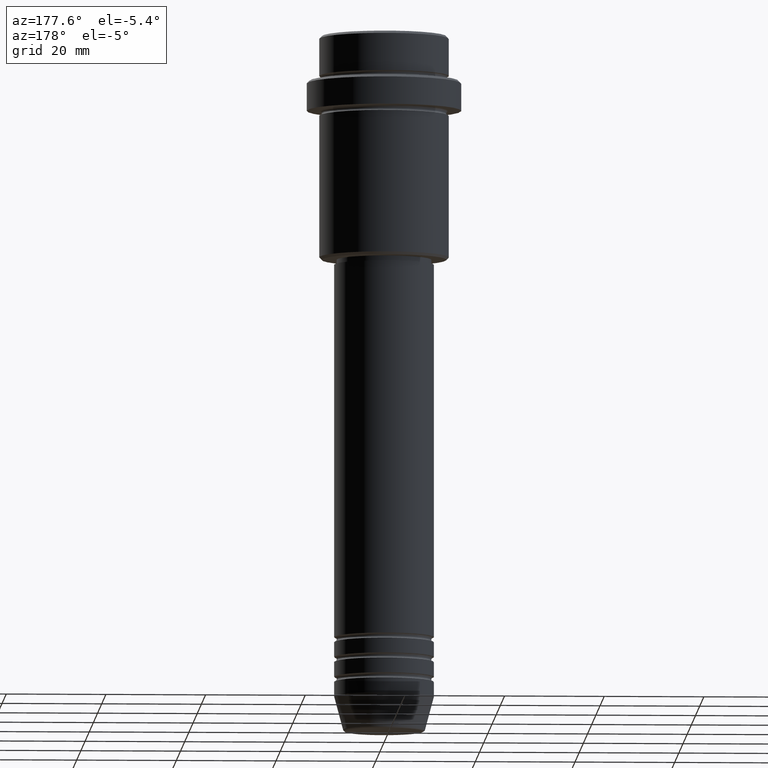
[diagram: clean part render]
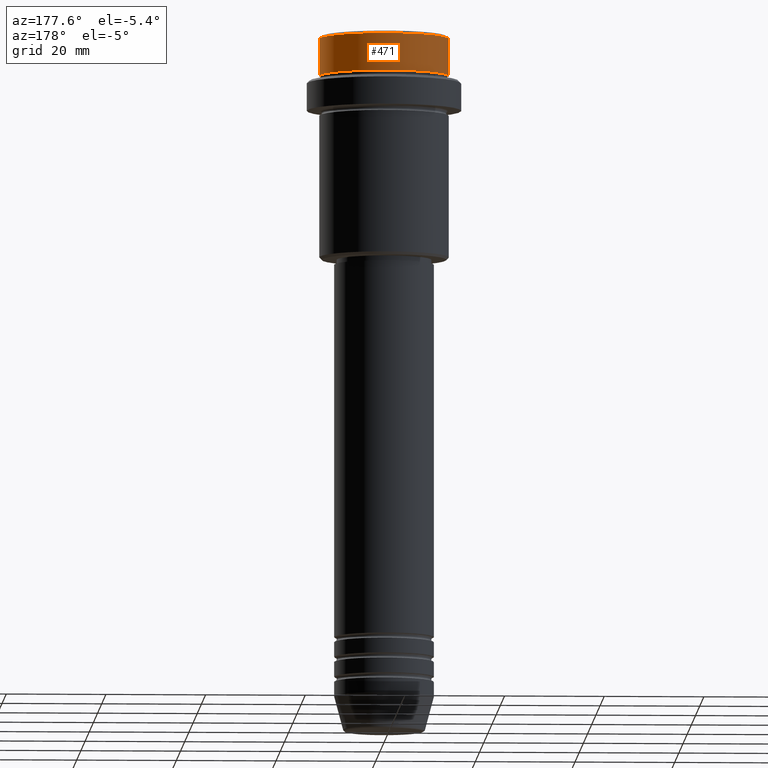
[diagram: same view with one face highlighted and labeled with its STEP entity id]
A machine part, auxiliary view. The second image highlights one B-rep face of the part: STEP entity #471.
In plain terms, the highlighted cylindrical surface (partial cylindrical patch) has radius 13 mm, axis along (-0, -0, 1).
Its self-contained STEP definition (entity closure, byte-faithful):
#24 = CIRCLE ( 'NONE', #180, 12.99999999999999822 ) ;
#56 = LINE ( 'NONE', #828, #882 ) ;
#180 = AXIS2_PLACEMENT_3D ( 'NONE', #206, #835, #965 ) ;
#206 = CARTESIAN_POINT ( 'NONE',  ( 0.000000000000000000, 0.000000000000000000, -0.4999999999999900080 ) ) ;
#214 = CARTESIAN_POINT ( 'NONE',  ( 12.99999999999999822, 0.000000000000000000, -0.4999999999999900080 ) ) ;
#217 = CARTESIAN_POINT ( 'NONE',  ( 0.000000000000000000, 0.000000000000000000, -7.999999999999998224 ) ) ;
#320 = EDGE_CURVE ( 'NONE', #868, #380, #24, .T. ) ;
#343 = VERTEX_POINT ( 'NONE', #542 ) ;
#351 = CARTESIAN_POINT ( 'NONE',  ( 12.99999999999999822, 0.000000000000000000, -7.999999999999998224 ) ) ;
#370 = DIRECTION ( 'NONE',  ( -0.000000000000000000, -0.000000000000000000, 1.000000000000000000 ) ) ;
#380 = VERTEX_POINT ( 'NONE', #214 ) ;
#385 = AXIS2_PLACEMENT_3D ( 'NONE', #217, #1355, #1140 ) ;
#414 = VECTOR ( 'NONE', #1257, 1000.000000000000000 ) ;
#464 = DIRECTION ( 'NONE',  ( -0.000000000000000000, -0.000000000000000000, 1.000000000000000000 ) ) ;
#471 = ADVANCED_FACE ( 'NONE', ( #1061 ), #655, .T. ) ;
#476 = VERTEX_POINT ( 'NONE', #351 ) ;
#542 = CARTESIAN_POINT ( 'NONE',  ( -12.99999999999999822, 1.592040838891558898E-15, -7.999999999999998224 ) ) ;
#574 = DIRECTION ( 'NONE',  ( 1.000000000000000000, 0.000000000000000000, 0.000000000000000000 ) ) ;
#578 = CIRCLE ( 'NONE', #385, 12.99999999999999822 ) ;
#587 = EDGE_CURVE ( 'NONE', #476, #343, #578, .T. ) ;
#642 = CARTESIAN_POINT ( 'NONE',  ( 0.000000000000000000, 0.000000000000000000, 0.000000000000000000 ) ) ;
#655 = CYLINDRICAL_SURFACE ( 'NONE', #1194, 12.99999999999999822 ) ;
#805 = CARTESIAN_POINT ( 'NONE',  ( 12.99999999999999822, 0.000000000000000000, 0.000000000000000000 ) ) ;
#807 = CARTESIAN_POINT ( 'NONE',  ( -12.99999999999999822, 1.592040838891558898E-15, -0.4999999999999900080 ) ) ;
#828 = CARTESIAN_POINT ( 'NONE',  ( -12.99999999999999822, 1.592040838891558898E-15, 0.000000000000000000 ) ) ;
#835 = DIRECTION ( 'NONE',  ( 0.000000000000000000, 0.000000000000000000, -1.000000000000000000 ) ) ;
#867 = EDGE_CURVE ( 'NONE', #343, #868, #56, .T. ) ;
#868 = VERTEX_POINT ( 'NONE', #807 ) ;
#882 = VECTOR ( 'NONE', #370, 1000.000000000000000 ) ;
#936 = ORIENTED_EDGE ( 'NONE', *, *, #867, .T. ) ;
#965 = DIRECTION ( 'NONE',  ( 1.000000000000000000, 0.000000000000000000, 0.000000000000000000 ) ) ;
#1061 = FACE_OUTER_BOUND ( 'NONE', #1141, .T. ) ;
#1106 = EDGE_CURVE ( 'NONE', #476, #380, #1365, .T. ) ;
#1115 = ORIENTED_EDGE ( 'NONE', *, *, #320, .T. ) ;
#1140 = DIRECTION ( 'NONE',  ( 1.000000000000000000, 0.000000000000000000, 0.000000000000000000 ) ) ;
#1141 = EDGE_LOOP ( 'NONE', ( #1185, #936, #1115, #1235 ) ) ;
#1185 = ORIENTED_EDGE ( 'NONE', *, *, #587, .T. ) ;
#1194 = AXIS2_PLACEMENT_3D ( 'NONE', #642, #464, #574 ) ;
#1235 = ORIENTED_EDGE ( 'NONE', *, *, #1106, .F. ) ;
#1257 = DIRECTION ( 'NONE',  ( -0.000000000000000000, -0.000000000000000000, 1.000000000000000000 ) ) ;
#1355 = DIRECTION ( 'NONE',  ( -0.000000000000000000, -0.000000000000000000, 1.000000000000000000 ) ) ;
#1365 = LINE ( 'NONE', #805, #414 ) ;